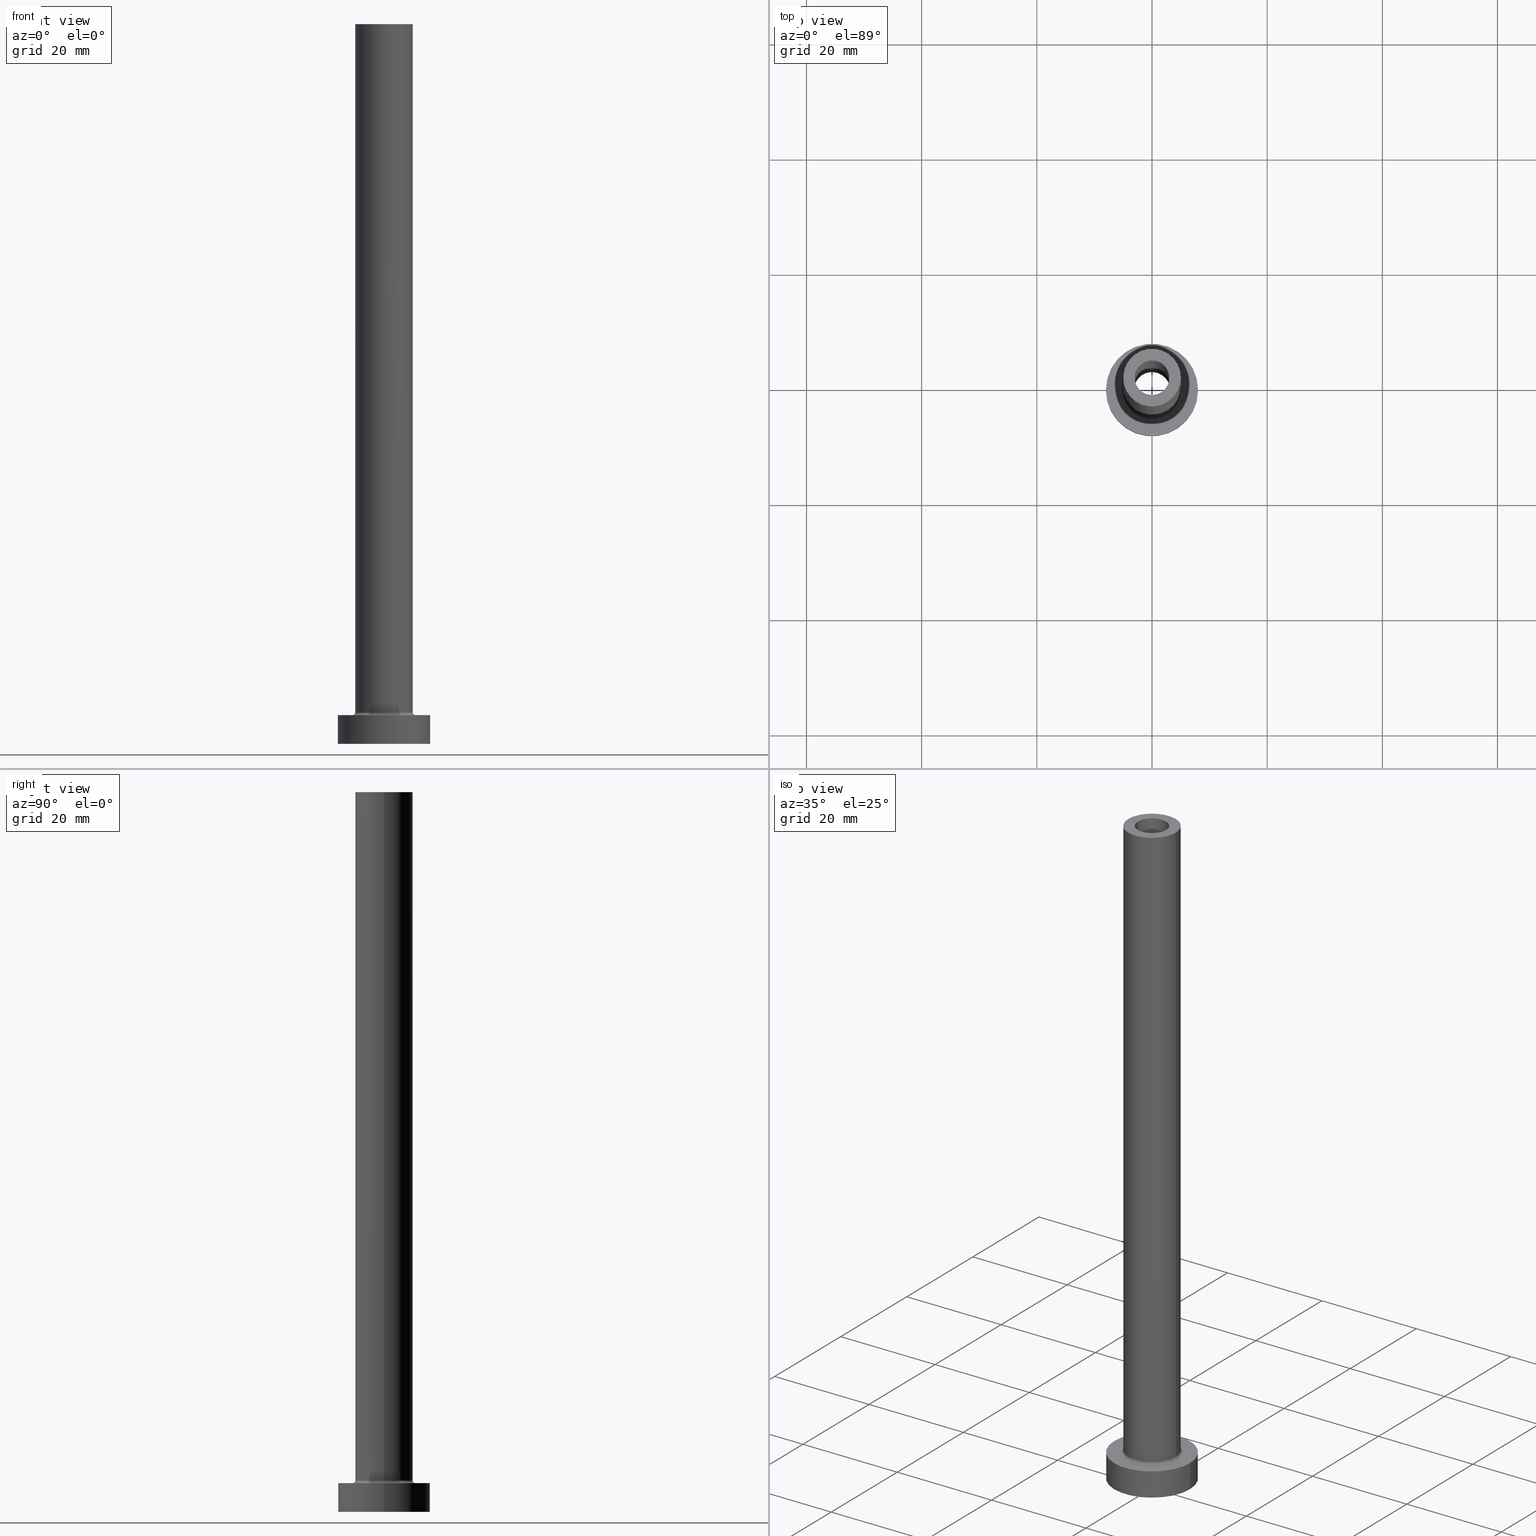
[diagram: canonical four-view strip — front | top / right | iso, engineering-drawing reading convention]
A machine part, canonical four-view strip (front | top / right | iso — engineering-drawing reading convention). The complete STEP part file that produces these views, byte-faithful:
ISO-10303-21;
HEADER;
FILE_DESCRIPTION (( 'STEP AP203' ),
    '1' );
FILE_NAME ('44fd.STEP',
    '2023-02-13T10:10:13',
    ( '' ),
    ( '' ),
    'SwSTEP 2.0',
    'SolidWorks 2019',
    '' );
FILE_SCHEMA (( 'CONFIG_CONTROL_DESIGN' ));
ENDSEC;

DATA;
#1 = VERTEX_POINT ( 'NONE', #303 ) ;
#2 = EDGE_CURVE ( 'NONE', #133, #170, #227, .T. ) ;
#3 = LINE ( 'NONE', #69, #6 ) ;
#4 = ORIENTED_EDGE ( 'NONE', *, *, #120, .F. ) ;
#5 = DIRECTION ( 'NONE',  ( -0.000000000000000000, -0.000000000000000000, -1.000000000000000000 ) ) ;
#6 = VECTOR ( 'NONE', #252, 1000.000000000000000 ) ;
#7 = DIRECTION ( 'NONE',  ( 1.000000000000000000, 0.000000000000000000, 0.000000000000000000 ) ) ;
#8 = APPROVAL ( #59, 'NEUR�EN�' ) ;
#9 = SHAPE_DEFINITION_REPRESENTATION ( #197, #323 ) ;
#10 = PERSON_AND_ORGANIZATION_ROLE ( 'classification_officer' ) ;
#11 = AXIS2_PLACEMENT_3D ( 'NONE', #451, #421, #137 ) ;
#12 = CYLINDRICAL_SURFACE ( 'NONE', #319, 5.000000000000000000 ) ;
#13 = AXIS2_PLACEMENT_3D ( 'NONE', #294, #17, #107 ) ;
#14 = PRODUCT_DEFINITION_FORMATION_WITH_SPECIFIED_SOURCE ( 'LIBOVOLN�', '', #45, .NOT_KNOWN. ) ;
#15 = CARTESIAN_POINT ( 'NONE',  ( 0.000000000000000000, 0.000000000000000000, 5.500000000000005329 ) ) ;
#16 = APPROVAL_ROLE ( '' ) ;
#17 = DIRECTION ( 'NONE',  ( 0.000000000000000000, 0.000000000000000000, 1.000000000000000000 ) ) ;
#18 = PERSON_AND_ORGANIZATION ( #394, #358 ) ;
#19 = APPROVAL_DATE_TIME ( #301, #72 ) ;
#20 = ADVANCED_FACE ( 'NONE', ( #167, #311 ), #27, .T. ) ;
#21 = AXIS2_PLACEMENT_3D ( 'NONE', #375, #409, #268 ) ;
#22 = PERSON_AND_ORGANIZATION ( #394, #358 ) ;
#23 = VERTEX_POINT ( 'NONE', #412 ) ;
#24 = CC_DESIGN_PERSON_AND_ORGANIZATION_ASSIGNMENT ( #165, #127, ( #414 ) ) ;
#25 = ORIENTED_EDGE ( 'NONE', *, *, #400, .T. ) ;
#26 = FACE_OUTER_BOUND ( 'NONE', #420, .T. ) ;
#27 = PLANE ( 'NONE',  #357 ) ;
#28 = ORIENTED_EDGE ( 'NONE', *, *, #36, .F. ) ;
#29 = DIRECTION ( 'NONE',  ( -0.000000000000000000, -0.000000000000000000, -1.000000000000000000 ) ) ;
#30 = PERSON_AND_ORGANIZATION ( #394, #358 ) ;
#31 = VERTEX_POINT ( 'NONE', #96 ) ;
#32 = AXIS2_PLACEMENT_3D ( 'NONE', #287, #5, #391 ) ;
#33 = DIRECTION ( 'NONE',  ( -0.000000000000000000, -0.000000000000000000, -1.000000000000000000 ) ) ;
#34 = ORIENTED_EDGE ( 'NONE', *, *, #220, .F. ) ;
#35 = DIRECTION ( 'NONE',  ( 1.000000000000000000, 0.000000000000000000, 0.000000000000000000 ) ) ;
#36 = EDGE_CURVE ( 'NONE', #1, #380, #257, .T. ) ;
#37 = APPROVAL_DATE_TIME ( #356, #355 ) ;
#38 = AXIS2_PLACEMENT_3D ( 'NONE', #410, #91, #143 ) ;
#39 = CIRCLE ( 'NONE', #255, 3.000000000000000444 ) ;
#40 = DATE_TIME_ROLE ( 'classification_date' ) ;
#41 = PLANE ( 'NONE',  #21 ) ;
#42 = EDGE_CURVE ( 'NONE', #106, #191, #389, .T. ) ;
#43 = AXIS2_PLACEMENT_3D ( 'NONE', #353, #342, #385 ) ;
#44 = LOCAL_TIME ( 11, 10, 13.00000000000000000, #369 ) ;
#45 = PRODUCT ( '44fd', '44fd', '', ( #148 ) ) ;
#46 = EDGE_LOOP ( 'NONE', ( #245, #384, #163, #155 ) ) ;
#47 = CARTESIAN_POINT ( 'NONE',  ( 0.000000000000000000, 0.000000000000000000, 88.90954544295050255 ) ) ;
#48 = EDGE_CURVE ( 'NONE', #99, #121, #398, .T. ) ;
#49 = CIRCLE ( 'NONE', #286, 8.000000000000000000 ) ;
#50 = DIRECTION ( 'NONE',  ( 0.000000000000000000, 0.000000000000000000, -1.000000000000000000 ) ) ;
#51 = EDGE_CURVE ( 'NONE', #344, #93, #261, .T. ) ;
#52 = CARTESIAN_POINT ( 'NONE',  ( 0.000000000000000000, 0.000000000000000000, 5.000000000000000000 ) ) ;
#53 = ORIENTED_EDGE ( 'NONE', *, *, #42, .T. ) ;
#54 =( NAMED_UNIT ( * ) SI_UNIT ( $, .STERADIAN. ) SOLID_ANGLE_UNIT ( ) );
#55 = CIRCLE ( 'NONE', #13, 3.000000000000000444 ) ;
#56 = DIRECTION ( 'NONE',  ( 1.000000000000000000, 0.000000000000000000, 0.000000000000000000 ) ) ;
#57 = CYLINDRICAL_SURFACE ( 'NONE', #263, 8.000000000000000000 ) ;
#58 = DIRECTION ( 'NONE',  ( -1.000000000000000000, 0.000000000000000000, 0.000000000000000000 ) ) ;
#59 = APPROVAL_STATUS ( 'not_yet_approved' ) ;
#60 = EDGE_LOOP ( 'NONE', ( #214, #373 ) ) ;
#61 = ORIENTED_EDGE ( 'NONE', *, *, #36, .T. ) ;
#62 = LINE ( 'NONE', #209, #222 ) ;
#63 = CARTESIAN_POINT ( 'NONE',  ( 0.000000000000000000, 0.000000000000000000, 5.000000000000000000 ) ) ;
#64 = EDGE_LOOP ( 'NONE', ( #145, #273, #128, #178 ) ) ;
#65 = ORIENTED_EDGE ( 'NONE', *, *, #378, .T. ) ;
#66 = ORIENTED_EDGE ( 'NONE', *, *, #291, .T. ) ;
#67 = CIRCLE ( 'NONE', #302, 5.000000000000000000 ) ;
#68 =( GEOMETRIC_REPRESENTATION_CONTEXT ( 3 ) GLOBAL_UNCERTAINTY_ASSIGNED_CONTEXT ( ( #289 ) ) GLOBAL_UNIT_ASSIGNED_CONTEXT ( ( #431, #244, #54 ) ) REPRESENTATION_CONTEXT ( 'NONE', 'WORKASPACE' ) );
#69 = CARTESIAN_POINT ( 'NONE',  ( -3.150000000000000355, 0.000000000000000000, 88.90954544295050255 ) ) ;
#70 = PERSON_AND_ORGANIZATION_ROLE ( 'design_owner' ) ;
#71 = DIRECTION ( 'NONE',  ( 0.000000000000000000, 0.000000000000000000, 1.000000000000000000 ) ) ;
#72 = APPROVAL ( #395, 'NEUR�EN�' ) ;
#73 = AXIS2_PLACEMENT_3D ( 'NONE', #348, #453, #456 ) ;
#74 = EDGE_CURVE ( 'NONE', #210, #344, #67, .T. ) ;
#75 = CALENDAR_DATE ( 2023, 13, 2 ) ;
#76 = DESIGN_CONTEXT ( 'detailed design', #406, 'design' ) ;
#77 = DIRECTION ( 'NONE',  ( 0.000000000000000000, 0.000000000000000000, 1.000000000000000000 ) ) ;
#78 = CIRCLE ( 'NONE', #100, 3.150000000000000355 ) ;
#79 = EDGE_CURVE ( 'NONE', #93, #264, #250, .T. ) ;
#80 = ADVANCED_FACE ( 'NONE', ( #181 ), #382, .T. ) ;
#81 = ORIENTED_EDGE ( 'NONE', *, *, #343, .T. ) ;
#82 = CARTESIAN_POINT ( 'NONE',  ( 0.000000000000000000, 0.000000000000000000, 125.0000000000000000 ) ) ;
#83 = CARTESIAN_POINT ( 'NONE',  ( 8.000000000000000000, 9.797174393178825657E-16, 5.000000000000000000 ) ) ;
#84 = ORIENTED_EDGE ( 'NONE', *, *, #452, .T. ) ;
#85 = LINE ( 'NONE', #439, #377 ) ;
#86 = CIRCLE ( 'NONE', #113, 5.000000000000000000 ) ;
#87 = CC_DESIGN_APPROVAL ( #8, ( #461 ) ) ;
#88 = ORIENTED_EDGE ( 'NONE', *, *, #296, .T. ) ;
#89 = DIRECTION ( 'NONE',  ( 1.000000000000000000, 0.000000000000000000, 0.000000000000000000 ) ) ;
#90 = CARTESIAN_POINT ( 'NONE',  ( 0.000000000000000000, 0.000000000000000000, 80.00000000000000000 ) ) ;
#91 = DIRECTION ( 'NONE',  ( 0.000000000000000000, 0.000000000000000000, 1.000000000000000000 ) ) ;
#92 = CARTESIAN_POINT ( 'NONE',  ( -8.000000000000000000, 0.000000000000000000, 5.000000000000000000 ) ) ;
#93 = VERTEX_POINT ( 'NONE', #171 ) ;
#94 = CARTESIAN_POINT ( 'NONE',  ( 5.500000000000000000, 0.000000000000000000, 5.000000000000002665 ) ) ;
#95 = PLANE ( 'NONE',  #194 ) ;
#96 = CARTESIAN_POINT ( 'NONE',  ( -3.150000000000000355, 0.000000000000000000, 0.000000000000000000 ) ) ;
#97 = LINE ( 'NONE', #231, #141 ) ;
#98 = DATE_AND_TIME ( #75, #459 ) ;
#99 = VERTEX_POINT ( 'NONE', #418 ) ;
#100 = AXIS2_PLACEMENT_3D ( 'NONE', #90, #131, #308 ) ;
#101 = CARTESIAN_POINT ( 'NONE',  ( 3.000000000000000444, 3.673940397442059868E-16, 125.0000000000000000 ) ) ;
#102 = ORIENTED_EDGE ( 'NONE', *, *, #48, .F. ) ;
#103 = EDGE_CURVE ( 'NONE', #210, #264, #156, .T. ) ;
#104 = DIRECTION ( 'NONE',  ( 1.000000000000000000, 0.000000000000000000, 0.000000000000000000 ) ) ;
#105 = PLANE ( 'NONE',  #122 ) ;
#106 = VERTEX_POINT ( 'NONE', #243 ) ;
#107 = DIRECTION ( 'NONE',  ( 1.000000000000000000, 0.000000000000000000, 0.000000000000000000 ) ) ;
#108 = CARTESIAN_POINT ( 'NONE',  ( -3.150000000000000355, 0.000000000000000000, 80.00000000000000000 ) ) ;
#109 = ORIENTED_EDGE ( 'NONE', *, *, #366, .F. ) ;
#110 = DIRECTION ( 'NONE',  ( 1.224646799147353207E-16, 1.000000000000000000, -0.000000000000000000 ) ) ;
#111 = ORIENTED_EDGE ( 'NONE', *, *, #201, .F. ) ;
#112 = DIRECTION ( 'NONE',  ( 0.000000000000000000, 0.000000000000000000, 1.000000000000000000 ) ) ;
#113 = AXIS2_PLACEMENT_3D ( 'NONE', #82, #206, #362 ) ;
#114 = CYLINDRICAL_SURFACE ( 'NONE', #313, 3.150000000000000355 ) ;
#115 = CC_DESIGN_PERSON_AND_ORGANIZATION_ASSIGNMENT ( #216, #427, ( #14 ) ) ;
#116 = DIRECTION ( 'NONE',  ( -1.000000000000000000, 0.000000000000000000, 0.000000000000000000 ) ) ;
#117 = CIRCLE ( 'NONE', #251, 3.150000000000000355 ) ;
#118 = CC_DESIGN_APPROVAL ( #355, ( #14 ) ) ;
#119 = EDGE_CURVE ( 'NONE', #248, #380, #62, .T. ) ;
#120 = EDGE_CURVE ( 'NONE', #106, #210, #460, .T. ) ;
#121 = VERTEX_POINT ( 'NONE', #292 ) ;
#122 = AXIS2_PLACEMENT_3D ( 'NONE', #63, #386, #325 ) ;
#123 = ORIENTED_EDGE ( 'NONE', *, *, #316, .F. ) ;
#124 = EDGE_LOOP ( 'NONE', ( #365, #81, #61, #132 ) ) ;
#125 = DIRECTION ( 'NONE',  ( -0.000000000000000000, -0.000000000000000000, -1.000000000000000000 ) ) ;
#126 = SECURITY_CLASSIFICATION_LEVEL ( 'unclassified' ) ;
#127 = PERSON_AND_ORGANIZATION_ROLE ( 'creator' ) ;
#128 = ORIENTED_EDGE ( 'NONE', *, *, #400, .F. ) ;
#129 = TOROIDAL_SURFACE ( 'NONE', #282, 5.500000000000000000, 0.5000000000000000000 ) ;
#130 = LOCAL_TIME ( 11, 10, 13.00000000000000000, #219 ) ;
#131 = DIRECTION ( 'NONE',  ( 0.000000000000000000, 0.000000000000000000, 1.000000000000000000 ) ) ;
#132 = ORIENTED_EDGE ( 'NONE', *, *, #119, .F. ) ;
#133 = VERTEX_POINT ( 'NONE', #440 ) ;
#134 = LINE ( 'NONE', #101, #202 ) ;
#135 = EDGE_LOOP ( 'NONE', ( #266, #260 ) ) ;
#136 = DIRECTION ( 'NONE',  ( -0.000000000000000000, -0.000000000000000000, -1.000000000000000000 ) ) ;
#137 = DIRECTION ( 'NONE',  ( 1.000000000000000000, 0.000000000000000000, 0.000000000000000000 ) ) ;
#138 = EDGE_LOOP ( 'NONE', ( #211, #324, #65, #407 ) ) ;
#139 = EDGE_CURVE ( 'NONE', #344, #210, #192, .T. ) ;
#140 = EDGE_LOOP ( 'NONE', ( #4, #34, #242, #279 ) ) ;
#141 = VECTOR ( 'NONE', #50, 1000.000000000000000 ) ;
#142 = ADVANCED_FACE ( 'NONE', ( #26 ), #169, .F. ) ;
#143 = DIRECTION ( 'NONE',  ( 1.000000000000000000, 0.000000000000000000, 0.000000000000000000 ) ) ;
#144 = FACE_OUTER_BOUND ( 'NONE', #326, .T. ) ;
#145 = ORIENTED_EDGE ( 'NONE', *, *, #139, .F. ) ;
#146 = CARTESIAN_POINT ( 'NONE',  ( 0.000000000000000000, 0.000000000000000000, 125.0000000000000000 ) ) ;
#147 = EDGE_LOOP ( 'NONE', ( #229, #352, #405, #208 ) ) ;
#148 = MECHANICAL_CONTEXT ( 'NONE', #449, 'mechanical' ) ;
#149 = AXIS2_PLACEMENT_3D ( 'NONE', #52, #416, #333 ) ;
#150 = APPROVAL_STATUS ( 'not_yet_approved' ) ;
#151 = APPLICATION_PROTOCOL_DEFINITION ( 'international standard', 'config_control_design', 1994, #406 ) ;
#152 = DIRECTION ( 'NONE',  ( -1.000000000000000000, 0.000000000000000000, 0.000000000000000000 ) ) ;
#153 = FACE_OUTER_BOUND ( 'NONE', #458, .T. ) ;
#154 = AXIS2_PLACEMENT_3D ( 'NONE', #47, #331, #159 ) ;
#155 = ORIENTED_EDGE ( 'NONE', *, *, #79, .F. ) ;
#156 = CIRCLE ( 'NONE', #328, 0.5000000000000004441 ) ;
#157 = EDGE_LOOP ( 'NONE', ( #25, #361 ) ) ;
#158 = CIRCLE ( 'NONE', #329, 3.000000000000000444 ) ;
#159 = DIRECTION ( 'NONE',  ( -1.000000000000000000, 0.000000000000000000, 0.000000000000000000 ) ) ;
#160 = ADVANCED_FACE ( 'NONE', ( #307 ), #173, .F. ) ;
#161 = CALENDAR_DATE ( 2023, 13, 2 ) ;
#162 = CALENDAR_DATE ( 2023, 13, 2 ) ;
#163 = ORIENTED_EDGE ( 'NONE', *, *, #103, .T. ) ;
#164 = CC_DESIGN_SECURITY_CLASSIFICATION ( #461, ( #14 ) ) ;
#165 = PERSON_AND_ORGANIZATION ( #394, #358 ) ;
#166 = DIRECTION ( 'NONE',  ( 0.000000000000000000, 0.000000000000000000, -1.000000000000000000 ) ) ;
#167 = FACE_BOUND ( 'NONE', #347, .T. ) ;
#168 = EDGE_CURVE ( 'NONE', #133, #23, #275, .T. ) ;
#169 = CYLINDRICAL_SURFACE ( 'NONE', #193, 3.000000000000000444 ) ;
#170 = VERTEX_POINT ( 'NONE', #108 ) ;
#171 = CARTESIAN_POINT ( 'NONE',  ( -5.500000000000000000, 6.735557395310442023E-16, 5.000000000000002665 ) ) ;
#172 = CC_DESIGN_PERSON_AND_ORGANIZATION_ASSIGNMENT ( #281, #70, ( #45 ) ) ;
#173 = CYLINDRICAL_SURFACE ( 'NONE', #73, 3.000000000000000444 ) ;
#174 = VERTEX_POINT ( 'NONE', #374 ) ;
#175 = DIRECTION ( 'NONE',  ( 0.000000000000000000, -1.000000000000000000, 0.000000000000000000 ) ) ;
#176 = CARTESIAN_POINT ( 'NONE',  ( -3.000000000000000444, 0.000000000000000000, 125.0000000000000000 ) ) ;
#177 = DIRECTION ( 'NONE',  ( -0.000000000000000000, -0.000000000000000000, -1.000000000000000000 ) ) ;
#178 = ORIENTED_EDGE ( 'NONE', *, *, #103, .F. ) ;
#179 = CARTESIAN_POINT ( 'NONE',  ( 3.150000000000000355, 3.857637417314163182E-16, 88.90954544295050255 ) ) ;
#180 = AXIS2_PLACEMENT_3D ( 'NONE', #199, #335, #7 ) ;
#181 = FACE_OUTER_BOUND ( 'NONE', #140, .T. ) ;
#182 = ORIENTED_EDGE ( 'NONE', *, *, #168, .T. ) ;
#183 = COORDINATED_UNIVERSAL_TIME_OFFSET ( 1, 0, .AHEAD. ) ;
#184 = AXIS2_PLACEMENT_3D ( 'NONE', #429, #240, #383 ) ;
#185 = EDGE_CURVE ( 'NONE', #232, #271, #158, .T. ) ;
#186 = CALENDAR_DATE ( 2023, 13, 2 ) ;
#187 = CIRCLE ( 'NONE', #241, 8.000000000000000000 ) ;
#188 = ADVANCED_FACE ( 'NONE', ( #448 ), #205, .F. ) ;
#189 = CC_DESIGN_PERSON_AND_ORGANIZATION_ASSIGNMENT ( #256, #10, ( #461 ) ) ;
#190 = CARTESIAN_POINT ( 'NONE',  ( 3.000000000000000444, 3.673940397442059868E-16, 125.0000000000000000 ) ) ;
#191 = VERTEX_POINT ( 'NONE', #441 ) ;
#192 = CIRCLE ( 'NONE', #428, 5.000000000000000000 ) ;
#193 = AXIS2_PLACEMENT_3D ( 'NONE', #249, #381, #236 ) ;
#194 = AXIS2_PLACEMENT_3D ( 'NONE', #272, #346, #370 ) ;
#195 = DIRECTION ( 'NONE',  ( 1.000000000000000000, 0.000000000000000000, 0.000000000000000000 ) ) ;
#196 = ADVANCED_FACE ( 'NONE', ( #408, #144 ), #105, .T. ) ;
#197 = PRODUCT_DEFINITION_SHAPE ( 'NONE', 'NONE',  #414 ) ;
#198 = CARTESIAN_POINT ( 'NONE',  ( -8.000000000000000000, 0.000000000000000000, 0.000000000000000000 ) ) ;
#199 = CARTESIAN_POINT ( 'NONE',  ( 0.000000000000000000, 0.000000000000000000, 0.000000000000000000 ) ) ;
#200 = CARTESIAN_POINT ( 'NONE',  ( -5.000000000000000000, 0.000000000000000000, 5.500000000000005329 ) ) ;
#201 = EDGE_CURVE ( 'NONE', #271, #232, #55, .T. ) ;
#202 = VECTOR ( 'NONE', #166, 1000.000000000000000 ) ;
#203 = EDGE_LOOP ( 'NONE', ( #314, #411, #84, #66 ) ) ;
#204 = DIRECTION ( 'NONE',  ( 1.000000000000000000, 0.000000000000000000, 0.000000000000000000 ) ) ;
#205 = CYLINDRICAL_SURFACE ( 'NONE', #154, 3.150000000000000355 ) ;
#206 = DIRECTION ( 'NONE',  ( 0.000000000000000000, 0.000000000000000000, 1.000000000000000000 ) ) ;
#207 = FACE_BOUND ( 'NONE', #135, .T. ) ;
#208 = ORIENTED_EDGE ( 'NONE', *, *, #316, .T. ) ;
#209 = CARTESIAN_POINT ( 'NONE',  ( -8.000000000000000000, 0.000000000000000000, 5.000000000000000000 ) ) ;
#210 = VERTEX_POINT ( 'NONE', #437 ) ;
#211 = ORIENTED_EDGE ( 'NONE', *, *, #402, .F. ) ;
#212 = DIRECTION ( 'NONE',  ( -1.000000000000000000, 1.224646799147351482E-16, 0.000000000000000000 ) ) ;
#213 = AXIS2_PLACEMENT_3D ( 'NONE', #238, #376, #56 ) ;
#214 = ORIENTED_EDGE ( 'NONE', *, *, #390, .F. ) ;
#215 = AXIS2_PLACEMENT_3D ( 'NONE', #393, #71, #104 ) ;
#216 = PERSON_AND_ORGANIZATION ( #394, #358 ) ;
#217 = DIRECTION ( 'NONE',  ( 0.000000000000000000, 0.000000000000000000, 1.000000000000000000 ) ) ;
#218 = APPROVAL_ROLE ( '' ) ;
#219 = COORDINATED_UNIVERSAL_TIME_OFFSET ( 1, 0, .AHEAD. ) ;
#220 = EDGE_CURVE ( 'NONE', #191, #106, #86, .T. ) ;
#221 = APPLICATION_PROTOCOL_DEFINITION ( 'international standard', 'config_control_design', 1994, #449 ) ;
#222 = VECTOR ( 'NONE', #29, 1000.000000000000000 ) ;
#223 = CC_DESIGN_APPROVAL ( #72, ( #414 ) ) ;
#224 = DATE_AND_TIME ( #186, #130 ) ;
#225 = ADVANCED_FACE ( 'NONE', ( #345 ), #230, .F. ) ;
#226 = EDGE_CURVE ( 'NONE', #121, #99, #39, .T. ) ;
#227 = CIRCLE ( 'NONE', #38, 3.150000000000000355 ) ;
#228 = ORIENTED_EDGE ( 'NONE', *, *, #42, .F. ) ;
#229 = ORIENTED_EDGE ( 'NONE', *, *, #343, .F. ) ;
#230 = TOROIDAL_SURFACE ( 'NONE', #457, 5.500000000000000000, 0.5000000000000000000 ) ;
#231 = CARTESIAN_POINT ( 'NONE',  ( -3.000000000000000444, 0.000000000000000000, 125.0000000000000000 ) ) ;
#232 = VERTEX_POINT ( 'NONE', #190 ) ;
#233 = DIRECTION ( 'NONE',  ( -0.000000000000000000, -0.000000000000000000, -1.000000000000000000 ) ) ;
#234 = CARTESIAN_POINT ( 'NONE',  ( 0.000000000000000000, 0.000000000000000000, 125.0000000000000000 ) ) ;
#235 = ORIENTED_EDGE ( 'NONE', *, *, #402, .T. ) ;
#236 = DIRECTION ( 'NONE',  ( -1.000000000000000000, 0.000000000000000000, 0.000000000000000000 ) ) ;
#237 = PRODUCT_RELATED_PRODUCT_CATEGORY ( 'detail', '', ( #45 ) ) ;
#238 = CARTESIAN_POINT ( 'NONE',  ( 0.000000000000000000, 0.000000000000000000, 0.000000000000000000 ) ) ;
#239 = CARTESIAN_POINT ( 'NONE',  ( 0.000000000000000000, 0.000000000000000000, 5.000000000000000000 ) ) ;
#240 = DIRECTION ( 'NONE',  ( -0.000000000000000000, -0.000000000000000000, -1.000000000000000000 ) ) ;
#241 = AXIS2_PLACEMENT_3D ( 'NONE', #432, #217, #320 ) ;
#242 = ORIENTED_EDGE ( 'NONE', *, *, #247, .T. ) ;
#243 = CARTESIAN_POINT ( 'NONE',  ( 5.000000000000000000, 6.123233995736766282E-16, 125.0000000000000000 ) ) ;
#244 =( NAMED_UNIT ( * ) PLANE_ANGLE_UNIT ( ) SI_UNIT ( $, .RADIAN. ) );
#245 = ORIENTED_EDGE ( 'NONE', *, *, #51, .F. ) ;
#246 = MANIFOLD_SOLID_BREP ( 'Odebrat vysunut�m4', #336 ) ;
#247 = EDGE_CURVE ( 'NONE', #191, #344, #85, .T. ) ;
#248 = VERTEX_POINT ( 'NONE', #92 ) ;
#249 = CARTESIAN_POINT ( 'NONE',  ( 0.000000000000000000, 0.000000000000000000, 125.0000000000000000 ) ) ;
#250 = CIRCLE ( 'NONE', #293, 5.500000000000000000 ) ;
#251 = AXIS2_PLACEMENT_3D ( 'NONE', #341, #136, #413 ) ;
#252 = DIRECTION ( 'NONE',  ( 0.000000000000000000, 0.000000000000000000, -1.000000000000000000 ) ) ;
#253 = CARTESIAN_POINT ( 'NONE',  ( 0.000000000000000000, 0.000000000000000000, 88.90954544295050255 ) ) ;
#254 = CC_DESIGN_PERSON_AND_ORGANIZATION_ASSIGNMENT ( #18, #332, ( #14 ) ) ;
#255 = AXIS2_PLACEMENT_3D ( 'NONE', #435, #299, #89 ) ;
#256 = PERSON_AND_ORGANIZATION ( #394, #358 ) ;
#257 = CIRCLE ( 'NONE', #213, 8.000000000000000000 ) ;
#258 = ADVANCED_FACE ( 'NONE', ( #317, #153 ), #41, .F. ) ;
#259 = DIRECTION ( 'NONE',  ( 0.000000000000000000, 0.000000000000000000, 1.000000000000000000 ) ) ;
#260 = ORIENTED_EDGE ( 'NONE', *, *, #226, .T. ) ;
#261 = CIRCLE ( 'NONE', #442, 0.5000000000000004441 ) ;
#262 = FACE_OUTER_BOUND ( 'NONE', #422, .T. ) ;
#263 = AXIS2_PLACEMENT_3D ( 'NONE', #297, #446, #450 ) ;
#264 = VERTEX_POINT ( 'NONE', #94 ) ;
#265 = EDGE_LOOP ( 'NONE', ( #298, #109 ) ) ;
#266 = ORIENTED_EDGE ( 'NONE', *, *, #48, .T. ) ;
#267 = ADVANCED_FACE ( 'NONE', ( #359 ), #315, .T. ) ;
#268 = DIRECTION ( 'NONE',  ( 1.000000000000000000, 0.000000000000000000, -0.000000000000000000 ) ) ;
#269 = DIRECTION ( 'NONE',  ( 1.000000000000000000, 0.000000000000000000, -0.000000000000000000 ) ) ;
#270 = CARTESIAN_POINT ( 'NONE',  ( -5.500000000000000000, 6.735557395310442023E-16, 5.500000000000005329 ) ) ;
#271 = VERTEX_POINT ( 'NONE', #176 ) ;
#272 = CARTESIAN_POINT ( 'NONE',  ( 0.000000000000000000, 0.000000000000000000, 80.00000000000000000 ) ) ;
#273 = ORIENTED_EDGE ( 'NONE', *, *, #51, .T. ) ;
#274 = LOCAL_TIME ( 11, 10, 13.00000000000000000, #183 ) ;
#275 = LINE ( 'NONE', #179, #321 ) ;
#276 = ADVANCED_FACE ( 'NONE', ( #351 ), #129, .F. ) ;
#277 = DIRECTION ( 'NONE',  ( 0.000000000000000000, 0.000000000000000000, -1.000000000000000000 ) ) ;
#278 = DIRECTION ( 'NONE',  ( 0.000000000000000000, 0.000000000000000000, 1.000000000000000000 ) ) ;
#279 = ORIENTED_EDGE ( 'NONE', *, *, #139, .T. ) ;
#280 = CALENDAR_DATE ( 2023, 13, 2 ) ;
#281 = PERSON_AND_ORGANIZATION ( #394, #358 ) ;
#282 = AXIS2_PLACEMENT_3D ( 'NONE', #426, #354, #35 ) ;
#283 = ADVANCED_FACE ( 'NONE', ( #284 ), #114, .F. ) ;
#284 = FACE_OUTER_BOUND ( 'NONE', #310, .T. ) ;
#285 = APPROVAL_ROLE ( '' ) ;
#286 = AXIS2_PLACEMENT_3D ( 'NONE', #438, #259, #204 ) ;
#287 = CARTESIAN_POINT ( 'NONE',  ( 0.000000000000000000, 0.000000000000000000, 0.000000000000000000 ) ) ;
#288 = EDGE_CURVE ( 'NONE', #248, #174, #187, .T. ) ;
#289 = UNCERTAINTY_MEASURE_WITH_UNIT (LENGTH_MEASURE( 1.000000000000000082E-05 ), #431, 'distance_accuracy_value', 'NONE');
#290 = EDGE_LOOP ( 'NONE', ( #340, #53 ) ) ;
#291 = EDGE_CURVE ( 'NONE', #31, #23, #295, .T. ) ;
#292 = CARTESIAN_POINT ( 'NONE',  ( 3.000000000000000444, 3.673940397442059868E-16, 80.00000000000000000 ) ) ;
#293 = AXIS2_PLACEMENT_3D ( 'NONE', #239, #33, #312 ) ;
#294 = CARTESIAN_POINT ( 'NONE',  ( 0.000000000000000000, 0.000000000000000000, 125.0000000000000000 ) ) ;
#295 = CIRCLE ( 'NONE', #32, 3.150000000000000355 ) ;
#296 = EDGE_CURVE ( 'NONE', #174, #248, #350, .T. ) ;
#297 = CARTESIAN_POINT ( 'NONE',  ( 0.000000000000000000, 0.000000000000000000, 5.000000000000000000 ) ) ;
#298 = ORIENTED_EDGE ( 'NONE', *, *, #291, .F. ) ;
#299 = DIRECTION ( 'NONE',  ( 0.000000000000000000, 0.000000000000000000, 1.000000000000000000 ) ) ;
#300 = CARTESIAN_POINT ( 'NONE',  ( 5.000000000000000000, 6.123233995736766282E-16, 125.0000000000000000 ) ) ;
#301 = DATE_AND_TIME ( #161, #44 ) ;
#302 = AXIS2_PLACEMENT_3D ( 'NONE', #349, #278, #195 ) ;
#303 = CARTESIAN_POINT ( 'NONE',  ( 8.000000000000000000, 9.797174393178825657E-16, 0.000000000000000000 ) ) ;
#304 = LOCAL_TIME ( 11, 10, 13.00000000000000000, #363 ) ;
#305 = ADVANCED_FACE ( 'NONE', ( #367 ), #57, .T. ) ;
#306 = DIRECTION ( 'NONE',  ( 0.000000000000000000, 0.000000000000000000, 1.000000000000000000 ) ) ;
#307 = FACE_OUTER_BOUND ( 'NONE', #138, .T. ) ;
#308 = DIRECTION ( 'NONE',  ( 1.000000000000000000, 0.000000000000000000, 0.000000000000000000 ) ) ;
#309 = CARTESIAN_POINT ( 'NONE',  ( 5.500000000000000000, 0.000000000000000000, 5.500000000000005329 ) ) ;
#310 = EDGE_LOOP ( 'NONE', ( #334, #182, #425, #387 ) ) ;
#311 = FACE_OUTER_BOUND ( 'NONE', #290, .T. ) ;
#312 = DIRECTION ( 'NONE',  ( 1.000000000000000000, 0.000000000000000000, 0.000000000000000000 ) ) ;
#313 = AXIS2_PLACEMENT_3D ( 'NONE', #253, #392, #116 ) ;
#314 = ORIENTED_EDGE ( 'NONE', *, *, #168, .F. ) ;
#315 = CYLINDRICAL_SURFACE ( 'NONE', #184, 8.000000000000000000 ) ;
#316 = EDGE_CURVE ( 'NONE', #380, #1, #49, .T. ) ;
#317 = FACE_BOUND ( 'NONE', #265, .T. ) ;
#318 = CC_DESIGN_DATE_AND_TIME_ASSIGNMENT ( #98, #40, ( #461 ) ) ;
#319 = AXIS2_PLACEMENT_3D ( 'NONE', #146, #177, #152 ) ;
#320 = DIRECTION ( 'NONE',  ( 1.000000000000000000, 0.000000000000000000, 0.000000000000000000 ) ) ;
#321 = VECTOR ( 'NONE', #277, 1000.000000000000000 ) ;
#322 = DIRECTION ( 'NONE',  ( 1.000000000000000000, 0.000000000000000000, 0.000000000000000000 ) ) ;
#323 = ADVANCED_BREP_SHAPE_REPRESENTATION ( '44fd', ( #246, #180 ), #68 ) ;
#324 = ORIENTED_EDGE ( 'NONE', *, *, #185, .T. ) ;
#325 = DIRECTION ( 'NONE',  ( 1.000000000000000000, 0.000000000000000000, -0.000000000000000000 ) ) ;
#326 = EDGE_LOOP ( 'NONE', ( #371, #88 ) ) ;
#327 = VECTOR ( 'NONE', #125, 1000.000000000000000 ) ;
#328 = AXIS2_PLACEMENT_3D ( 'NONE', #309, #175, #454 ) ;
#329 = AXIS2_PLACEMENT_3D ( 'NONE', #423, #112, #388 ) ;
#330 = APPROVAL_PERSON_ORGANIZATION ( #30, #8, #285 ) ;
#331 = DIRECTION ( 'NONE',  ( 0.000000000000000000, 0.000000000000000000, -1.000000000000000000 ) ) ;
#332 = PERSON_AND_ORGANIZATION_ROLE ( 'design_supplier' ) ;
#333 = DIRECTION ( 'NONE',  ( 1.000000000000000000, 0.000000000000000000, 0.000000000000000000 ) ) ;
#334 = ORIENTED_EDGE ( 'NONE', *, *, #390, .T. ) ;
#335 = DIRECTION ( 'NONE',  ( 0.000000000000000000, 0.000000000000000000, 1.000000000000000000 ) ) ;
#336 = CLOSED_SHELL ( 'NONE', ( #142, #283, #276, #433, #305, #267, #196, #258, #80, #20, #225, #188, #397, #160 ) ) ;
#337 = DATE_TIME_ROLE ( 'creation_date' ) ;
#338 = ORIENTED_EDGE ( 'NONE', *, *, #74, .T. ) ;
#339 = DIRECTION ( 'NONE',  ( 1.000000000000000000, 0.000000000000000000, 0.000000000000000000 ) ) ;
#340 = ORIENTED_EDGE ( 'NONE', *, *, #220, .T. ) ;
#341 = CARTESIAN_POINT ( 'NONE',  ( 0.000000000000000000, 0.000000000000000000, 0.000000000000000000 ) ) ;
#342 = DIRECTION ( 'NONE',  ( 0.000000000000000000, 0.000000000000000000, 1.000000000000000000 ) ) ;
#343 = EDGE_CURVE ( 'NONE', #174, #1, #404, .T. ) ;
#344 = VERTEX_POINT ( 'NONE', #200 ) ;
#345 = FACE_OUTER_BOUND ( 'NONE', #46, .T. ) ;
#346 = DIRECTION ( 'NONE',  ( 0.000000000000000000, 0.000000000000000000, 1.000000000000000000 ) ) ;
#347 = EDGE_LOOP ( 'NONE', ( #111, #368 ) ) ;
#348 = CARTESIAN_POINT ( 'NONE',  ( 0.000000000000000000, 0.000000000000000000, 125.0000000000000000 ) ) ;
#349 = CARTESIAN_POINT ( 'NONE',  ( 0.000000000000000000, 0.000000000000000000, 5.500000000000005329 ) ) ;
#350 = CIRCLE ( 'NONE', #215, 8.000000000000000000 ) ;
#351 = FACE_OUTER_BOUND ( 'NONE', #64, .T. ) ;
#352 = ORIENTED_EDGE ( 'NONE', *, *, #288, .F. ) ;
#353 = CARTESIAN_POINT ( 'NONE',  ( 0.000000000000000000, 0.000000000000000000, 125.0000000000000000 ) ) ;
#354 = DIRECTION ( 'NONE',  ( 0.000000000000000000, 0.000000000000000000, 1.000000000000000000 ) ) ;
#355 = APPROVAL ( #150, 'NEUR�EN�' ) ;
#356 = DATE_AND_TIME ( #280, #274 ) ;
#357 = AXIS2_PLACEMENT_3D ( 'NONE', #234, #306, #269 ) ;
#358 = ORGANIZATION ( 'NEUR�EN�', 'NEUR�EN�', '' ) ;
#359 = FACE_OUTER_BOUND ( 'NONE', #147, .T. ) ;
#360 = APPROVAL_PERSON_ORGANIZATION ( #22, #355, #218 ) ;
#361 = ORIENTED_EDGE ( 'NONE', *, *, #79, .T. ) ;
#362 = DIRECTION ( 'NONE',  ( 1.000000000000000000, 0.000000000000000000, 0.000000000000000000 ) ) ;
#363 = COORDINATED_UNIVERSAL_TIME_OFFSET ( 1, 0, .AHEAD. ) ;
#364 = CIRCLE ( 'NONE', #149, 5.500000000000000000 ) ;
#365 = ORIENTED_EDGE ( 'NONE', *, *, #296, .F. ) ;
#366 = EDGE_CURVE ( 'NONE', #23, #31, #117, .T. ) ;
#367 = FACE_OUTER_BOUND ( 'NONE', #124, .T. ) ;
#368 = ORIENTED_EDGE ( 'NONE', *, *, #185, .F. ) ;
#369 = COORDINATED_UNIVERSAL_TIME_OFFSET ( 1, 0, .AHEAD. ) ;
#370 = DIRECTION ( 'NONE',  ( 1.000000000000000000, 0.000000000000000000, -0.000000000000000000 ) ) ;
#371 = ORIENTED_EDGE ( 'NONE', *, *, #288, .T. ) ;
#372 = DIRECTION ( 'NONE',  ( -0.000000000000000000, -0.000000000000000000, -1.000000000000000000 ) ) ;
#373 = ORIENTED_EDGE ( 'NONE', *, *, #2, .F. ) ;
#374 = CARTESIAN_POINT ( 'NONE',  ( 8.000000000000000000, 9.797174393178825657E-16, 5.000000000000000000 ) ) ;
#375 = CARTESIAN_POINT ( 'NONE',  ( 0.000000000000000000, 0.000000000000000000, 0.000000000000000000 ) ) ;
#376 = DIRECTION ( 'NONE',  ( 0.000000000000000000, 0.000000000000000000, 1.000000000000000000 ) ) ;
#377 = VECTOR ( 'NONE', #233, 1000.000000000000000 ) ;
#378 = EDGE_CURVE ( 'NONE', #271, #99, #97, .T. ) ;
#379 = DIRECTION ( 'NONE',  ( -0.000000000000000000, -0.000000000000000000, -1.000000000000000000 ) ) ;
#380 = VERTEX_POINT ( 'NONE', #198 ) ;
#381 = DIRECTION ( 'NONE',  ( 0.000000000000000000, 0.000000000000000000, -1.000000000000000000 ) ) ;
#382 = CYLINDRICAL_SURFACE ( 'NONE', #415, 5.000000000000000000 ) ;
#383 = DIRECTION ( 'NONE',  ( -1.000000000000000000, 0.000000000000000000, 0.000000000000000000 ) ) ;
#384 = ORIENTED_EDGE ( 'NONE', *, *, #74, .F. ) ;
#385 = DIRECTION ( 'NONE',  ( 1.000000000000000000, 0.000000000000000000, 0.000000000000000000 ) ) ;
#386 = DIRECTION ( 'NONE',  ( 0.000000000000000000, 0.000000000000000000, 1.000000000000000000 ) ) ;
#387 = ORIENTED_EDGE ( 'NONE', *, *, #452, .F. ) ;
#388 = DIRECTION ( 'NONE',  ( 1.000000000000000000, 0.000000000000000000, 0.000000000000000000 ) ) ;
#389 = CIRCLE ( 'NONE', #43, 5.000000000000000000 ) ;
#390 = EDGE_CURVE ( 'NONE', #170, #133, #78, .T. ) ;
#391 = DIRECTION ( 'NONE',  ( 1.000000000000000000, 0.000000000000000000, 0.000000000000000000 ) ) ;
#392 = DIRECTION ( 'NONE',  ( 0.000000000000000000, 0.000000000000000000, -1.000000000000000000 ) ) ;
#393 = CARTESIAN_POINT ( 'NONE',  ( 0.000000000000000000, 0.000000000000000000, 5.000000000000000000 ) ) ;
#394 = PERSON ( 'NEUR�EN�', 'NEUR�EN�', 'NEUR�EN�', ('NEUR�EN�'), ('NEUR�EN�'), ('NEUR�EN�') ) ;
#395 = APPROVAL_STATUS ( 'not_yet_approved' ) ;
#396 = APPROVAL_DATE_TIME ( #224, #8 ) ;
#397 = ADVANCED_FACE ( 'NONE', ( #207, #445 ), #95, .F. ) ;
#398 = CIRCLE ( 'NONE', #11, 3.000000000000000444 ) ;
#399 = APPROVAL_PERSON_ORGANIZATION ( #430, #72, #16 ) ;
#400 = EDGE_CURVE ( 'NONE', #264, #93, #364, .T. ) ;
#401 = COORDINATED_UNIVERSAL_TIME_OFFSET ( 1, 0, .AHEAD. ) ;
#402 = EDGE_CURVE ( 'NONE', #232, #121, #134, .T. ) ;
#403 = ORIENTED_EDGE ( 'NONE', *, *, #120, .T. ) ;
#404 = LINE ( 'NONE', #83, #443 ) ;
#405 = ORIENTED_EDGE ( 'NONE', *, *, #119, .T. ) ;
#406 = APPLICATION_CONTEXT ( 'configuration controlled 3d designs of mechanical parts and assemblies' ) ;
#407 = ORIENTED_EDGE ( 'NONE', *, *, #226, .F. ) ;
#408 = FACE_BOUND ( 'NONE', #157, .T. ) ;
#409 = DIRECTION ( 'NONE',  ( 0.000000000000000000, 0.000000000000000000, 1.000000000000000000 ) ) ;
#410 = CARTESIAN_POINT ( 'NONE',  ( 0.000000000000000000, 0.000000000000000000, 80.00000000000000000 ) ) ;
#411 = ORIENTED_EDGE ( 'NONE', *, *, #2, .T. ) ;
#412 = CARTESIAN_POINT ( 'NONE',  ( 3.150000000000000355, 3.857637417314163182E-16, 0.000000000000000000 ) ) ;
#413 = DIRECTION ( 'NONE',  ( 1.000000000000000000, 0.000000000000000000, 0.000000000000000000 ) ) ;
#414 = PRODUCT_DEFINITION ( 'NEZN�M�', '', #14, #76 ) ;
#415 = AXIS2_PLACEMENT_3D ( 'NONE', #424, #379, #58 ) ;
#416 = DIRECTION ( 'NONE',  ( -0.000000000000000000, -0.000000000000000000, -1.000000000000000000 ) ) ;
#417 = ORIENTED_EDGE ( 'NONE', *, *, #201, .T. ) ;
#418 = CARTESIAN_POINT ( 'NONE',  ( -3.000000000000000444, 0.000000000000000000, 80.00000000000000000 ) ) ;
#419 = DIRECTION ( 'NONE',  ( 0.000000000000000000, 0.000000000000000000, 1.000000000000000000 ) ) ;
#420 = EDGE_LOOP ( 'NONE', ( #417, #235, #102, #447 ) ) ;
#421 = DIRECTION ( 'NONE',  ( 0.000000000000000000, 0.000000000000000000, 1.000000000000000000 ) ) ;
#422 = EDGE_LOOP ( 'NONE', ( #228, #403, #338, #455 ) ) ;
#423 = CARTESIAN_POINT ( 'NONE',  ( 0.000000000000000000, 0.000000000000000000, 125.0000000000000000 ) ) ;
#424 = CARTESIAN_POINT ( 'NONE',  ( 0.000000000000000000, 0.000000000000000000, 125.0000000000000000 ) ) ;
#425 = ORIENTED_EDGE ( 'NONE', *, *, #366, .T. ) ;
#426 = CARTESIAN_POINT ( 'NONE',  ( 0.000000000000000000, 0.000000000000000000, 5.500000000000005329 ) ) ;
#427 = PERSON_AND_ORGANIZATION_ROLE ( 'creator' ) ;
#428 = AXIS2_PLACEMENT_3D ( 'NONE', #436, #419, #339 ) ;
#429 = CARTESIAN_POINT ( 'NONE',  ( 0.000000000000000000, 0.000000000000000000, 5.000000000000000000 ) ) ;
#430 = PERSON_AND_ORGANIZATION ( #394, #358 ) ;
#431 =( LENGTH_UNIT ( ) NAMED_UNIT ( * ) SI_UNIT ( .MILLI., .METRE. ) );
#432 = CARTESIAN_POINT ( 'NONE',  ( 0.000000000000000000, 0.000000000000000000, 5.000000000000000000 ) ) ;
#433 = ADVANCED_FACE ( 'NONE', ( #262 ), #12, .T. ) ;
#434 = CC_DESIGN_DATE_AND_TIME_ASSIGNMENT ( #444, #337, ( #414 ) ) ;
#435 = CARTESIAN_POINT ( 'NONE',  ( 0.000000000000000000, 0.000000000000000000, 80.00000000000000000 ) ) ;
#436 = CARTESIAN_POINT ( 'NONE',  ( 0.000000000000000000, 0.000000000000000000, 5.500000000000005329 ) ) ;
#437 = CARTESIAN_POINT ( 'NONE',  ( 5.000000000000000000, 6.123233995736766282E-16, 5.500000000000005329 ) ) ;
#438 = CARTESIAN_POINT ( 'NONE',  ( 0.000000000000000000, 0.000000000000000000, 0.000000000000000000 ) ) ;
#439 = CARTESIAN_POINT ( 'NONE',  ( -5.000000000000000000, 0.000000000000000000, 125.0000000000000000 ) ) ;
#440 = CARTESIAN_POINT ( 'NONE',  ( 3.150000000000000355, 3.857637417314163182E-16, 80.00000000000000000 ) ) ;
#441 = CARTESIAN_POINT ( 'NONE',  ( -5.000000000000000000, 0.000000000000000000, 125.0000000000000000 ) ) ;
#442 = AXIS2_PLACEMENT_3D ( 'NONE', #270, #110, #212 ) ;
#443 = VECTOR ( 'NONE', #372, 1000.000000000000000 ) ;
#444 = DATE_AND_TIME ( #162, #304 ) ;
#445 = FACE_OUTER_BOUND ( 'NONE', #60, .T. ) ;
#446 = DIRECTION ( 'NONE',  ( -0.000000000000000000, -0.000000000000000000, -1.000000000000000000 ) ) ;
#447 = ORIENTED_EDGE ( 'NONE', *, *, #378, .F. ) ;
#448 = FACE_OUTER_BOUND ( 'NONE', #203, .T. ) ;
#449 = APPLICATION_CONTEXT ( 'configuration controlled 3d designs of mechanical parts and assemblies' ) ;
#450 = DIRECTION ( 'NONE',  ( -1.000000000000000000, 0.000000000000000000, 0.000000000000000000 ) ) ;
#451 = CARTESIAN_POINT ( 'NONE',  ( 0.000000000000000000, 0.000000000000000000, 80.00000000000000000 ) ) ;
#452 = EDGE_CURVE ( 'NONE', #170, #31, #3, .T. ) ;
#453 = DIRECTION ( 'NONE',  ( 0.000000000000000000, 0.000000000000000000, -1.000000000000000000 ) ) ;
#454 = DIRECTION ( 'NONE',  ( 0.000000000000000000, 0.000000000000000000, -1.000000000000000000 ) ) ;
#455 = ORIENTED_EDGE ( 'NONE', *, *, #247, .F. ) ;
#456 = DIRECTION ( 'NONE',  ( -1.000000000000000000, 0.000000000000000000, 0.000000000000000000 ) ) ;
#457 = AXIS2_PLACEMENT_3D ( 'NONE', #15, #77, #322 ) ;
#458 = EDGE_LOOP ( 'NONE', ( #123, #28 ) ) ;
#459 = LOCAL_TIME ( 11, 10, 13.00000000000000000, #401 ) ;
#460 = LINE ( 'NONE', #300, #327 ) ;
#461 = SECURITY_CLASSIFICATION ( '', '', #126 ) ;
ENDSEC;
END-ISO-10303-21;
